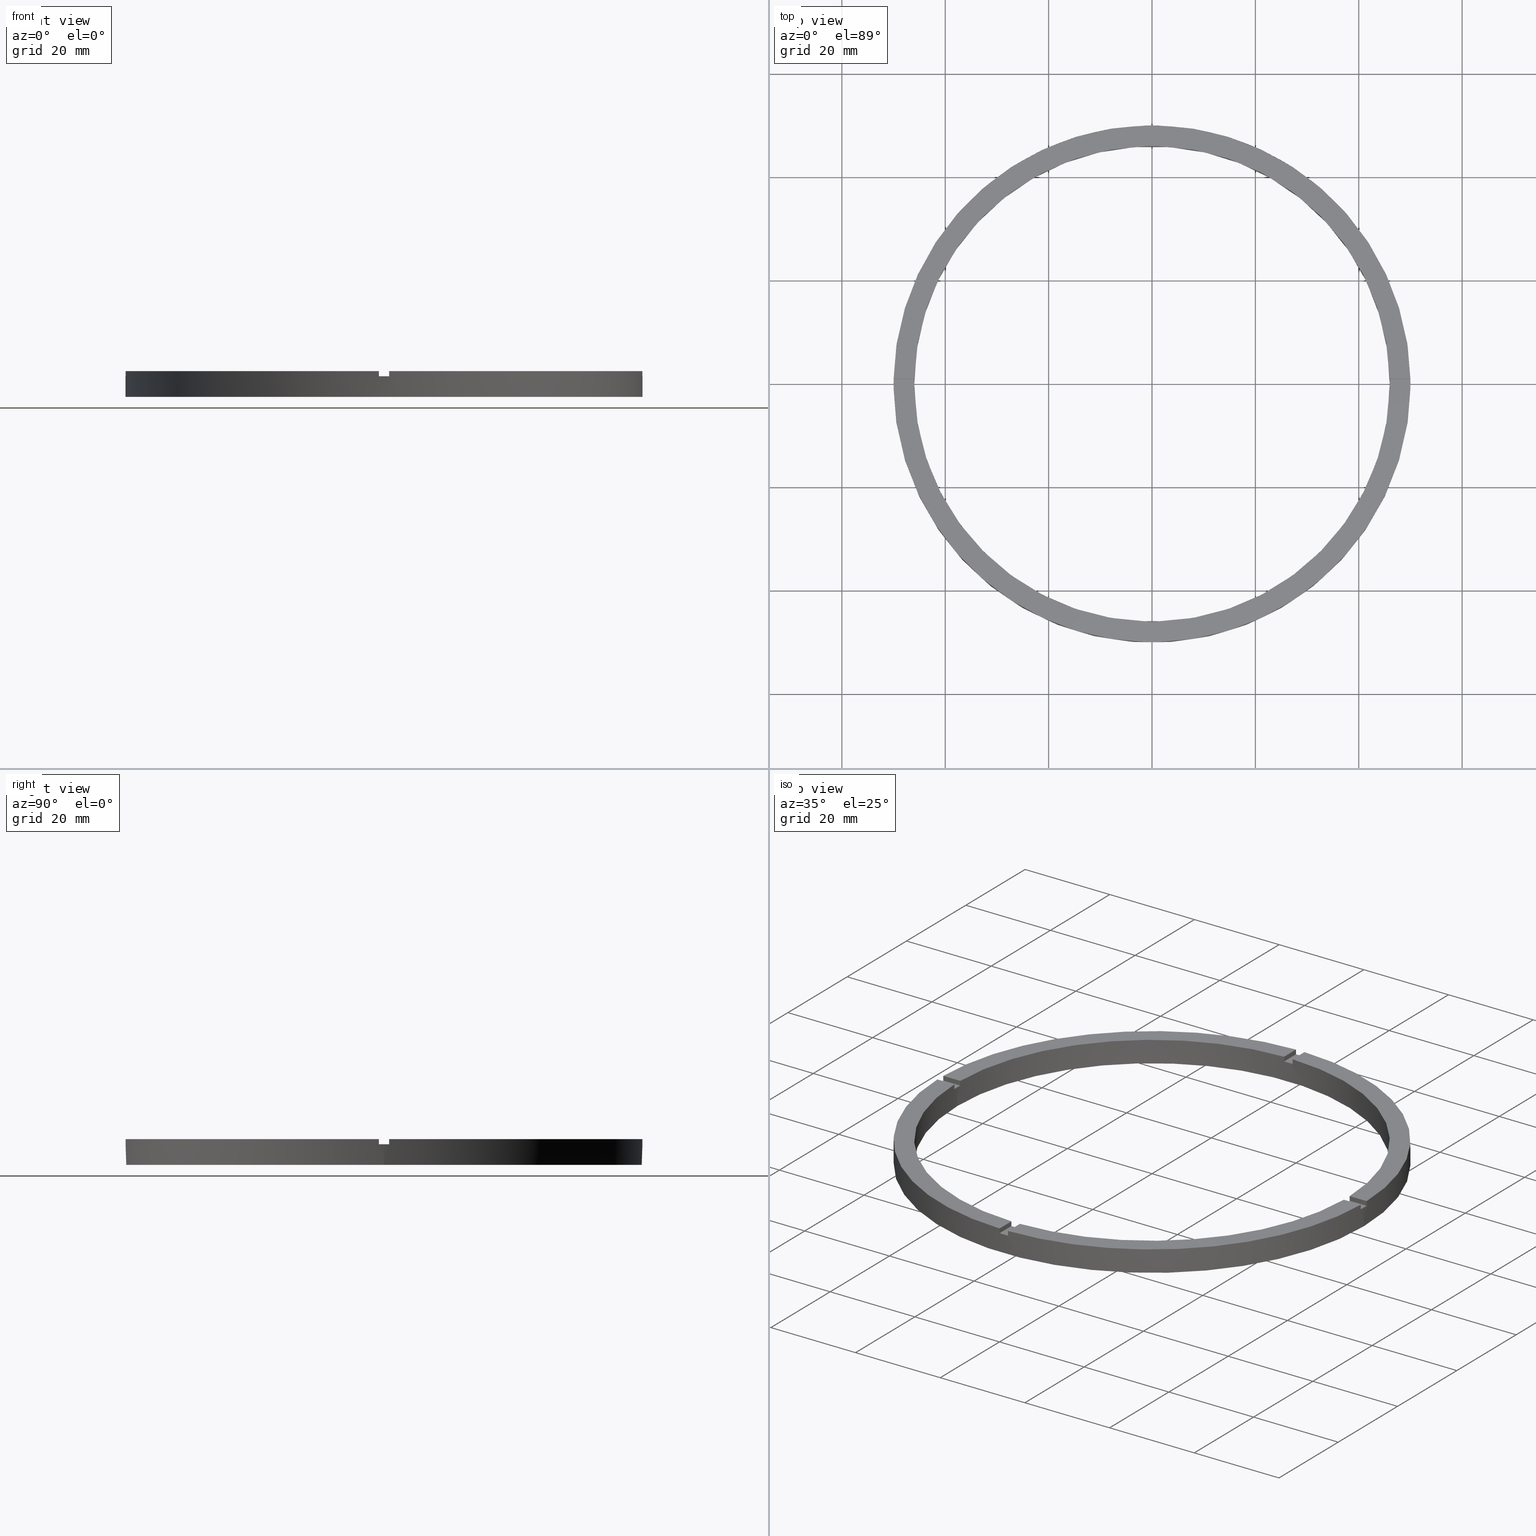
[diagram: canonical four-view strip — front | top / right | iso, engineering-drawing reading convention]
A machine part, canonical four-view strip (front | top / right | iso — engineering-drawing reading convention). The complete STEP part file that produces these views, byte-faithful:
ISO-10303-21;
HEADER;
FILE_DESCRIPTION (( 'STEP AP203' ),
    '1' );
FILE_NAME ('514204.step',
    '2024-12-26T02:47:46',
    ( 'MSI' ),
    ( '' ),
    'SwSTEP 2.0',
    'SolidWorks 2020',
    '' );
FILE_SCHEMA (( 'CONFIG_CONTROL_DESIGN' ));
ENDSEC;

DATA;
#1 = VECTOR ( 'NONE', #499, 1000.000000000000000 ) ;
#2 = DIRECTION ( 'NONE',  ( 1.000000000000000000, 0.000000000000000000, -0.000000000000000000 ) ) ;
#3 = SECURITY_CLASSIFICATION ( '', '', #211 ) ;
#4 = ADVANCED_FACE ( 'NONE', ( #563 ), #281, .T. ) ;
#5 = CARTESIAN_POINT ( 'NONE',  ( -1.000000000000026867, 40.00000000000000000, 4.000000000000000000 ) ) ;
#6 = PLANE ( 'NONE',  #493 ) ;
#7 = ADVANCED_FACE ( 'NONE', ( #570, #289 ), #682, .F. ) ;
#8 = DIRECTION ( 'NONE',  ( 1.000000000000000000, 0.000000000000000000, 0.000000000000000000 ) ) ;
#9 = DIRECTION ( 'NONE',  ( -0.000000000000000000, -0.000000000000000000, -1.000000000000000000 ) ) ;
#10 = CARTESIAN_POINT ( 'NONE',  ( -45.98912915026767223, 0.9999999999999694689, 4.000000000000000000 ) ) ;
#11 = AXIS2_PLACEMENT_3D ( 'NONE', #367, #446, #578 ) ;
#12 = DIRECTION ( 'NONE',  ( -0.000000000000000000, -0.000000000000000000, -1.000000000000000000 ) ) ;
#13 = EDGE_CURVE ( 'NONE', #704, #395, #547, .T. ) ;
#14 = AXIS2_PLACEMENT_3D ( 'NONE', #475, #694, #90 ) ;
#15 = DIRECTION ( 'NONE',  ( -1.301042606982605074E-16, 1.000000000000000000, -0.000000000000000000 ) ) ;
#16 = EDGE_CURVE ( 'NONE', #696, #717, #574, .T. ) ;
#17 = AXIS2_PLACEMENT_3D ( 'NONE', #692, #345, #756 ) ;
#18 = CARTESIAN_POINT ( 'NONE',  ( -1.000000000000026867, 45.98912915026767223, 5.000000000000000000 ) ) ;
#19 = CARTESIAN_POINT ( 'NONE',  ( 49.98999899979995831, 0.9999999999998447908, 5.000000000000000000 ) ) ;
#20 = CARTESIAN_POINT ( 'NONE',  ( 0.000000000000000000, 0.000000000000000000, 5.000000000000000000 ) ) ;
#21 = CARTESIAN_POINT ( 'NONE',  ( 0.000000000000000000, 0.000000000000000000, 5.000000000000000000 ) ) ;
#22 = AXIS2_PLACEMENT_3D ( 'NONE', #571, #333, #751 ) ;
#23 = EDGE_LOOP ( 'NONE', ( #442, #559, #385, #53, #469, #315, #26, #729, #207, #112, #552, #660 ) ) ;
#24 = DIRECTION ( 'NONE',  ( -0.000000000000000000, -0.000000000000000000, -1.000000000000000000 ) ) ;
#25 = ORIENTED_EDGE ( 'NONE', *, *, #628, .T. ) ;
#26 = ORIENTED_EDGE ( 'NONE', *, *, #639, .F. ) ;
#27 = ORIENTED_EDGE ( 'NONE', *, *, #72, .F. ) ;
#28 = CARTESIAN_POINT ( 'NONE',  ( -50.00000000000000000, 0.000000000000000000, 0.000000000000000000 ) ) ;
#29 = CARTESIAN_POINT ( 'NONE',  ( 0.000000000000000000, 0.000000000000000000, 0.000000000000000000 ) ) ;
#30 = EDGE_LOOP ( 'NONE', ( #379, #451, #428, #373, #312, #671, #417, #394, #142, #184, #45, #285 ) ) ;
#31 = LINE ( 'NONE', #227, #33 ) ;
#32 = LINE ( 'NONE', #218, #37 ) ;
#33 = VECTOR ( 'NONE', #371, 1000.000000000000000 ) ;
#34 = CARTESIAN_POINT ( 'NONE',  ( -46.00000000000000000, 0.000000000000000000, 0.000000000000000000 ) ) ;
#35 = DIRECTION ( 'NONE',  ( -1.301042606982605074E-16, 1.000000000000000000, 0.000000000000000000 ) ) ;
#36 = ORIENTED_EDGE ( 'NONE', *, *, #689, .F. ) ;
#37 = VECTOR ( 'NONE', #276, 1000.000000000000000 ) ;
#38 = ORIENTED_EDGE ( 'NONE', *, *, #80, .F. ) ;
#39 = EDGE_CURVE ( 'NONE', #370, #166, #581, .T. ) ;
#40 = CARTESIAN_POINT ( 'NONE',  ( 0.9999999999999731326, 45.98912915026767223, 4.000000000000000000 ) ) ;
#41 = EDGE_LOOP ( 'NONE', ( #381, #462, #100, #724 ) ) ;
#42 = VECTOR ( 'NONE', #219, 1000.000000000000000 ) ;
#43 = ORIENTED_EDGE ( 'NONE', *, *, #438, .F. ) ;
#44 = FACE_OUTER_BOUND ( 'NONE', #629, .T. ) ;
#45 = ORIENTED_EDGE ( 'NONE', *, *, #401, .T. ) ;
#46 = ORIENTED_EDGE ( 'NONE', *, *, #588, .T. ) ;
#47 = VERTEX_POINT ( 'NONE', #343 ) ;
#48 = EDGE_CURVE ( 'NONE', #133, #717, #554, .T. ) ;
#49 = CARTESIAN_POINT ( 'NONE',  ( 0.000000000000000000, 0.000000000000000000, 4.000000000000000000 ) ) ;
#50 = ORIENTED_EDGE ( 'NONE', *, *, #548, .F. ) ;
#51 = EDGE_LOOP ( 'NONE', ( #43, #452, #678, #384 ) ) ;
#52 = EDGE_CURVE ( 'NONE', #133, #107, #32, .T. ) ;
#53 = ORIENTED_EDGE ( 'NONE', *, *, #225, .F. ) ;
#54 = FACE_OUTER_BOUND ( 'NONE', #459, .T. ) ;
#55 = DIRECTION ( 'NONE',  ( -1.000000000000000000, -1.301042606982605074E-16, 0.000000000000000000 ) ) ;
#56 = VECTOR ( 'NONE', #128, 1000.000000000000000 ) ;
#57 = LINE ( 'NONE', #425, #329 ) ;
#58 = DIRECTION ( 'NONE',  ( 1.000000000000000000, 0.000000000000000000, 0.000000000000000000 ) ) ;
#59 = ADVANCED_FACE ( 'NONE', ( #44 ), #115, .T. ) ;
#60 = CIRCLE ( 'NONE', #654, 50.00000000000000000 ) ;
#61 = DIRECTION ( 'NONE',  ( 0.000000000000000000, 0.000000000000000000, 1.000000000000000000 ) ) ;
#62 = CC_DESIGN_PERSON_AND_ORGANIZATION_ASSIGNMENT ( #718, #123, ( #259 ) ) ;
#63 = DIRECTION ( 'NONE',  ( 0.000000000000000000, 0.000000000000000000, 1.000000000000000000 ) ) ;
#64 = AXIS2_PLACEMENT_3D ( 'NONE', #70, #210, #508 ) ;
#65 = DIRECTION ( 'NONE',  ( -0.000000000000000000, -0.000000000000000000, -1.000000000000000000 ) ) ;
#66 = CARTESIAN_POINT ( 'NONE',  ( 50.00000000000000000, 6.123233995736766085E-15, 5.000000000000000000 ) ) ;
#67 = DIRECTION ( 'NONE',  ( 0.000000000000000000, 0.000000000000000000, 1.000000000000000000 ) ) ;
#68 = CARTESIAN_POINT ( 'NONE',  ( 0.000000000000000000, 0.000000000000000000, 5.000000000000000000 ) ) ;
#69 = PRODUCT_RELATED_PRODUCT_CATEGORY ( 'detail', '', ( #109 ) ) ;
#70 = CARTESIAN_POINT ( 'NONE',  ( 0.000000000000000000, 0.000000000000000000, 5.000000000000000000 ) ) ;
#71 = EDGE_CURVE ( 'NONE', #399, #376, #321, .T. ) ;
#72 = EDGE_CURVE ( 'NONE', #727, #690, #302, .T. ) ;
#73 = DIRECTION ( 'NONE',  ( -0.000000000000000000, -0.000000000000000000, -1.000000000000000000 ) ) ;
#74 = DIRECTION ( 'NONE',  ( 1.000000000000000000, 0.000000000000000000, 0.000000000000000000 ) ) ;
#75 = DIRECTION ( 'NONE',  ( -0.000000000000000000, -0.000000000000000000, -1.000000000000000000 ) ) ;
#76 = CARTESIAN_POINT ( 'NONE',  ( -1.000000000000156763, -49.98999899979995121, 5.000000000000000000 ) ) ;
#77 = DIRECTION ( 'NONE',  ( -1.000000000000000000, -1.951563910473907735E-16, 0.000000000000000000 ) ) ;
#78 = EDGE_CURVE ( 'NONE', #704, #651, #550, .T. ) ;
#79 = AXIS2_PLACEMENT_3D ( 'NONE', #355, #606, #658 ) ;
#80 = EDGE_CURVE ( 'NONE', #667, #410, #292, .T. ) ;
#81 = CARTESIAN_POINT ( 'NONE',  ( -1.000000000000157208, -45.98912915026767223, 5.000000000000000000 ) ) ;
#82 = AXIS2_PLACEMENT_3D ( 'NONE', #613, #106, #363 ) ;
#83 = CARTESIAN_POINT ( 'NONE',  ( 0.000000000000000000, 0.000000000000000000, 4.000000000000000000 ) ) ;
#84 = CARTESIAN_POINT ( 'NONE',  ( 0.9999999999999731326, 49.98999899979995121, 4.000000000000000000 ) ) ;
#85 = CARTESIAN_POINT ( 'NONE',  ( 50.00000000000000000, 6.123233995736766085E-15, 0.000000000000000000 ) ) ;
#86 = CC_DESIGN_DATE_AND_TIME_ASSIGNMENT ( #477, #206, ( #233 ) ) ;
#87 = DIRECTION ( 'NONE',  ( 0.000000000000000000, -0.000000000000000000, 1.000000000000000000 ) ) ;
#88 = CARTESIAN_POINT ( 'NONE',  ( 45.98912915026767223, -1.000000000000155431, 4.000000000000000000 ) ) ;
#89 = CARTESIAN_POINT ( 'NONE',  ( 0.9999999999999731326, 49.98999899979995121, 5.000000000000000000 ) ) ;
#90 = DIRECTION ( 'NONE',  ( 1.000000000000000000, 0.000000000000000000, 0.000000000000000000 ) ) ;
#91 = CARTESIAN_POINT ( 'NONE',  ( 0.000000000000000000, 0.000000000000000000, 4.000000000000000000 ) ) ;
#92 = ADVANCED_FACE ( 'NONE', ( #288 ), #521, .F. ) ;
#93 = DIRECTION ( 'NONE',  ( 0.000000000000000000, 1.000000000000000000, 0.000000000000000000 ) ) ;
#95 = VERTEX_POINT ( 'NONE', #136 ) ;
#94 = AXIS2_PLACEMENT_3D ( 'NONE', #764, #294, #35 ) ;
#96 = PERSON_AND_ORGANIZATION_ROLE ( 'classification_officer' ) ;
#97 = ORIENTED_EDGE ( 'NONE', *, *, #588, .F. ) ;
#98 = EDGE_CURVE ( 'NONE', #314, #727, #31, .T. ) ;
#99 = ADVANCED_FACE ( 'NONE', ( #297 ), #683, .F. ) ;
#100 = ORIENTED_EDGE ( 'NONE', *, *, #532, .F. ) ;
#101 = CARTESIAN_POINT ( 'NONE',  ( -40.00000000000018474, 0.9999999999999705791, 4.000000000000000000 ) ) ;
#102 = VERTEX_POINT ( 'NONE', #34 ) ;
#103 = DIRECTION ( 'NONE',  ( 1.000000000000000000, 0.000000000000000000, 0.000000000000000000 ) ) ;
#104 = ORIENTED_EDGE ( 'NONE', *, *, #484, .T. ) ;
#105 =( NAMED_UNIT ( * ) SI_UNIT ( $, .STERADIAN. ) SOLID_ANGLE_UNIT ( ) );
#106 = DIRECTION ( 'NONE',  ( 0.000000000000000000, 0.000000000000000000, 1.000000000000000000 ) ) ;
#107 = VERTEX_POINT ( 'NONE', #461 ) ;
#108 = ORIENTED_EDGE ( 'NONE', *, *, #479, .T. ) ;
#109 = PRODUCT ( '514204', '514204', '', ( #566 ) ) ;
#110 = ORIENTED_EDGE ( 'NONE', *, *, #238, .F. ) ;
#111 = CARTESIAN_POINT ( 'NONE',  ( 0.000000000000000000, 0.000000000000000000, 0.000000000000000000 ) ) ;
#112 = ORIENTED_EDGE ( 'NONE', *, *, #762, .T. ) ;
#113 =( LENGTH_UNIT ( ) NAMED_UNIT ( * ) SI_UNIT ( .MILLI., .METRE. ) );
#114 = APPROVAL ( #320, 'δָ��' ) ;
#115 = PLANE ( 'NONE',  #82 ) ;
#116 = ORIENTED_EDGE ( 'NONE', *, *, #762, .F. ) ;
#117 = VERTEX_POINT ( 'NONE', #216 ) ;
#118 = AXIS2_PLACEMENT_3D ( 'NONE', #626, #700, #771 ) ;
#119 = EDGE_LOOP ( 'NONE', ( #659, #108, #46, #691, #298, #25 ) ) ;
#120 = CARTESIAN_POINT ( 'NONE',  ( -45.98912915026767223, 0.9999999999999694689, 5.000000000000000000 ) ) ;
#121 = ADVANCED_FACE ( 'NONE', ( #304 ), #305, .T. ) ;
#122 = ORIENTED_EDGE ( 'NONE', *, *, #765, .T. ) ;
#123 = PERSON_AND_ORGANIZATION_ROLE ( 'creator' ) ;
#124 = DIRECTION ( 'NONE',  ( -1.000000000000000000, -6.505213034913025371E-17, -0.000000000000000000 ) ) ;
#125 = EDGE_LOOP ( 'NONE', ( #400, #157, #649, #127, #154, #662, #457, #648, #407, #317, #318, #449 ) ) ;
#126 = VERTEX_POINT ( 'NONE', #84 ) ;
#127 = ORIENTED_EDGE ( 'NONE', *, *, #768, .F. ) ;
#128 = DIRECTION ( 'NONE',  ( 0.000000000000000000, 1.000000000000000000, 0.000000000000000000 ) ) ;
#129 = CARTESIAN_POINT ( 'NONE',  ( 46.00000000000000000, 5.633375276077824704E-15, 4.000000000000000000 ) ) ;
#130 = ORIENTED_EDGE ( 'NONE', *, *, #548, .T. ) ;
#131 = DIRECTION ( 'NONE',  ( -1.951563910473907735E-16, 1.000000000000000000, 0.000000000000000000 ) ) ;
#132 = VERTEX_POINT ( 'NONE', #693 ) ;
#133 = VERTEX_POINT ( 'NONE', #129 ) ;
#134 = VERTEX_POINT ( 'NONE', #76 ) ;
#135 = AXIS2_PLACEMENT_3D ( 'NONE', #336, #131, #77 ) ;
#136 = CARTESIAN_POINT ( 'NONE',  ( -45.98912915026767223, 0.9999999999999694689, 5.000000000000000000 ) ) ;
#137 = ORIENTED_EDGE ( 'NONE', *, *, #16, .T. ) ;
#138 = DIRECTION ( 'NONE',  ( 1.000000000000000000, 0.000000000000000000, 0.000000000000000000 ) ) ;
#139 = DIRECTION ( 'NONE',  ( 0.000000000000000000, 0.000000000000000000, 1.000000000000000000 ) ) ;
#140 = VERTEX_POINT ( 'NONE', #275 ) ;
#141 = ORIENTED_EDGE ( 'NONE', *, *, #591, .F. ) ;
#142 = ORIENTED_EDGE ( 'NONE', *, *, #299, .F. ) ;
#143 = CARTESIAN_POINT ( 'NONE',  ( 0.000000000000000000, 0.000000000000000000, 4.000000000000000000 ) ) ;
#144 = EDGE_CURVE ( 'NONE', #562, #638, #308, .T. ) ;
#145 = CARTESIAN_POINT ( 'NONE',  ( -49.98999899979995121, -1.000000000000031530, 5.000000000000000000 ) ) ;
#146 = ORIENTED_EDGE ( 'NONE', *, *, #765, .F. ) ;
#147 = AXIS2_PLACEMENT_3D ( 'NONE', #143, #226, #534 ) ;
#148 = CARTESIAN_POINT ( 'NONE',  ( -40.00000000000018474, 0.9999999999999705791, 5.000000000000000000 ) ) ;
#149 = ORIENTED_EDGE ( 'NONE', *, *, #98, .T. ) ;
#150 = DIRECTION ( 'NONE',  ( 0.000000000000000000, 0.000000000000000000, 1.000000000000000000 ) ) ;
#151 = VERTEX_POINT ( 'NONE', #28 ) ;
#152 = ORIENTED_EDGE ( 'NONE', *, *, #196, .F. ) ;
#153 = ORIENTED_EDGE ( 'NONE', *, *, #438, .T. ) ;
#154 = ORIENTED_EDGE ( 'NONE', *, *, #238, .T. ) ;
#155 = CARTESIAN_POINT ( 'NONE',  ( 0.000000000000000000, 0.000000000000000000, 4.000000000000000000 ) ) ;
#156 = VERTEX_POINT ( 'NONE', #145 ) ;
#157 = ORIENTED_EDGE ( 'NONE', *, *, #13, .F. ) ;
#158 = DIRECTION ( 'NONE',  ( -0.000000000000000000, -0.000000000000000000, -1.000000000000000000 ) ) ;
#159 = PERSON ( 'δָ��', 'δָ��', 'δָ��', ('δָ��'), ('δָ��'), ('δָ��') ) ;
#160 = ORIENTED_EDGE ( 'NONE', *, *, #196, .T. ) ;
#161 = ORIENTED_EDGE ( 'NONE', *, *, #295, .T. ) ;
#162 = DIRECTION ( 'NONE',  ( 0.000000000000000000, 0.000000000000000000, 1.000000000000000000 ) ) ;
#163 = ORIENTED_EDGE ( 'NONE', *, *, #80, .T. ) ;
#164 = CIRCLE ( 'NONE', #398, 46.00000000000000000 ) ;
#165 = AXIS2_PLACEMENT_3D ( 'NONE', #737, #61, #485 ) ;
#166 = VERTEX_POINT ( 'NONE', #81 ) ;
#167 = CIRCLE ( 'NONE', #79, 46.00000000000000000 ) ;
#168 = CARTESIAN_POINT ( 'NONE',  ( 0.000000000000000000, 0.000000000000000000, 5.000000000000000000 ) ) ;
#169 = ORIENTED_EDGE ( 'NONE', *, *, #611, .F. ) ;
#170 = APPROVAL_DATE_TIME ( #443, #324 ) ;
#171 = ORIENTED_EDGE ( 'NONE', *, *, #389, .T. ) ;
#172 = CARTESIAN_POINT ( 'NONE',  ( -1.000000000000157208, -45.98912915026767223, 5.000000000000000000 ) ) ;
#173 = ORIENTED_EDGE ( 'NONE', *, *, #688, .T. ) ;
#174 = ORGANIZATION ( 'δָ��', 'δָ��', '' ) ;
#175 = CARTESIAN_POINT ( 'NONE',  ( 0.000000000000000000, 0.000000000000000000, 5.000000000000000000 ) ) ;
#176 = ORIENTED_EDGE ( 'NONE', *, *, #430, .F. ) ;
#177 = ADVANCED_FACE ( 'NONE', ( #54 ), #592, .F. ) ;
#178 = CALENDAR_DATE ( 2024, 26, 12 ) ;
#179 = VERTEX_POINT ( 'NONE', #40 ) ;
#180 = APPROVAL_PERSON_ORGANIZATION ( #185, #114, #612 ) ;
#181 = DATE_TIME_ROLE ( 'classification_date' ) ;
#182 = CARTESIAN_POINT ( 'NONE',  ( -50.00000000000000000, 0.000000000000000000, 4.000000000000000000 ) ) ;
#183 = EDGE_LOOP ( 'NONE', ( #431, #635, #153, #637 ) ) ;
#184 = ORIENTED_EDGE ( 'NONE', *, *, #434, .T. ) ;
#185 = PERSON_AND_ORGANIZATION ( #159, #174 ) ;
#186 = CARTESIAN_POINT ( 'NONE',  ( 45.98912915026767934, 0.9999999999998445688, 5.000000000000000000 ) ) ;
#187 = ORIENTED_EDGE ( 'NONE', *, *, #338, .T. ) ;
#188 = CIRCLE ( 'NONE', #549, 50.00000000000000000 ) ;
#189 = DIRECTION ( 'NONE',  ( -1.000000000000000000, 0.000000000000000000, 0.000000000000000000 ) ) ;
#190 = ORIENTED_EDGE ( 'NONE', *, *, #72, .T. ) ;
#191 = ADVANCED_FACE ( 'NONE', ( #587 ), #267, .T. ) ;
#192 = PERSON_AND_ORGANIZATION ( #159, #174 ) ;
#193 = AXIS2_PLACEMENT_3D ( 'NONE', #5, #220, #282 ) ;
#194 = CARTESIAN_POINT ( 'NONE',  ( 0.000000000000000000, 0.000000000000000000, 0.000000000000000000 ) ) ;
#195 = CARTESIAN_POINT ( 'NONE',  ( -1.000000000000158096, -40.00000000000018474, 4.000000000000000000 ) ) ;
#196 = EDGE_CURVE ( 'NONE', #179, #126, #332, .T. ) ;
#197 = VERTEX_POINT ( 'NONE', #515 ) ;
#198 = COORDINATED_UNIVERSAL_TIME_OFFSET ( 8, 0, .AHEAD. ) ;
#199 = EDGE_CURVE ( 'NONE', #666, #151, #326, .T. ) ;
#200 = AXIS2_PLACEMENT_3D ( 'NONE', #222, #531, #623 ) ;
#201 = EDGE_LOOP ( 'NONE', ( #695, #161, #146, #420 ) ) ;
#202 = APPROVAL_DATE_TIME ( #470, #350 ) ;
#203 = DIRECTION ( 'NONE',  ( 1.000000000000000000, 0.000000000000000000, 0.000000000000000000 ) ) ;
#204 = ORIENTED_EDGE ( 'NONE', *, *, #732, .T. ) ;
#205 = CALENDAR_DATE ( 2024, 26, 12 ) ;
#206 = DATE_TIME_ROLE ( 'creation_date' ) ;
#207 = ORIENTED_EDGE ( 'NONE', *, *, #483, .F. ) ;
#208 = VECTOR ( 'NONE', #427, 1000.000000000000000 ) ;
#209 = COORDINATED_UNIVERSAL_TIME_OFFSET ( 8, 0, .AHEAD. ) ;
#210 = DIRECTION ( 'NONE',  ( 0.000000000000000000, 0.000000000000000000, 1.000000000000000000 ) ) ;
#211 = SECURITY_CLASSIFICATION_LEVEL ( 'unclassified' ) ;
#212 = PLANE ( 'NONE',  #541 ) ;
#213 = DATE_AND_TIME ( #730, #456 ) ;
#214 = AXIS2_PLACEMENT_3D ( 'NONE', #244, #55, #598 ) ;
#215 = PERSON_AND_ORGANIZATION ( #159, #174 ) ;
#216 = CARTESIAN_POINT ( 'NONE',  ( -46.00000000000000000, 0.000000000000000000, 4.000000000000000000 ) ) ;
#217 = DIRECTION ( 'NONE',  ( 1.000000000000000000, 0.000000000000000000, 0.000000000000000000 ) ) ;
#218 = CARTESIAN_POINT ( 'NONE',  ( 46.00000000000000000, 5.633375276077824704E-15, 5.000000000000000000 ) ) ;
#219 = DIRECTION ( 'NONE',  ( 0.000000000000000000, 0.000000000000000000, 1.000000000000000000 ) ) ;
#220 = DIRECTION ( 'NONE',  ( -1.000000000000000000, 0.000000000000000000, 0.000000000000000000 ) ) ;
#221 = DIRECTION ( 'NONE',  ( 0.000000000000000000, 0.000000000000000000, 1.000000000000000000 ) ) ;
#222 = CARTESIAN_POINT ( 'NONE',  ( 0.000000000000000000, 0.000000000000000000, 5.000000000000000000 ) ) ;
#223 = EDGE_CURVE ( 'NONE', #140, #391, #60, .T. ) ;
#224 = VECTOR ( 'NONE', #15, 1000.000000000000000 ) ;
#225 = EDGE_CURVE ( 'NONE', #391, #151, #593, .T. ) ;
#226 = DIRECTION ( 'NONE',  ( 0.000000000000000000, 0.000000000000000000, 1.000000000000000000 ) ) ;
#227 = CARTESIAN_POINT ( 'NONE',  ( 0.9999999999998419042, -40.00000000000018474, 5.000000000000000000 ) ) ;
#228 = CIRCLE ( 'NONE', #266, 46.00000000000000000 ) ;
#229 = CIRCLE ( 'NONE', #283, 50.00000000000000000 ) ;
#230 = VECTOR ( 'NONE', #24, 1000.000000000000000 ) ;
#231 = LINE ( 'NONE', #172, #232 ) ;
#232 = VECTOR ( 'NONE', #397, 1000.000000000000000 ) ;
#233 = PRODUCT_DEFINITION ( 'δ֪', '', #259, #713 ) ;
#234 = CIRCLE ( 'NONE', #290, 50.00000000000000000 ) ;
#235 =( GEOMETRIC_REPRESENTATION_CONTEXT ( 3 ) GLOBAL_UNCERTAINTY_ASSIGNED_CONTEXT ( ( #331 ) ) GLOBAL_UNIT_ASSIGNED_CONTEXT ( ( #113, #268, #105 ) ) REPRESENTATION_CONTEXT ( 'NONE', 'WORKASPACE' ) );
#236 = CIRCLE ( 'NONE', #383, 46.00000000000000000 ) ;
#237 = CARTESIAN_POINT ( 'NONE',  ( -45.98912915026767223, -1.000000000000030642, 4.000000000000000000 ) ) ;
#238 = EDGE_CURVE ( 'NONE', #314, #710, #57, .T. ) ;
#239 = LINE ( 'NONE', #120, #252 ) ;
#240 = CARTESIAN_POINT ( 'NONE',  ( -40.00000000000018474, -1.000000000000029532, 5.000000000000000000 ) ) ;
#241 = CIRCLE ( 'NONE', #14, 46.00000000000000000 ) ;
#242 = LINE ( 'NONE', #18, #769 ) ;
#243 = LINE ( 'NONE', #523, #230 ) ;
#244 = CARTESIAN_POINT ( 'NONE',  ( -1.000000000000158096, -40.00000000000018474, 4.000000000000000000 ) ) ;
#245 = LINE ( 'NONE', #579, #776 ) ;
#246 = DIRECTION ( 'NONE',  ( -0.000000000000000000, 0.000000000000000000, 1.000000000000000000 ) ) ;
#247 = VECTOR ( 'NONE', #124, 1000.000000000000000 ) ;
#248 = CIRCLE ( 'NONE', #722, 46.00000000000000000 ) ;
#249 = CIRCLE ( 'NONE', #347, 50.00000000000000000 ) ;
#250 = LINE ( 'NONE', #291, #513 ) ;
#251 = DIRECTION ( 'NONE',  ( 0.000000000000000000, 0.000000000000000000, 1.000000000000000000 ) ) ;
#252 = VECTOR ( 'NONE', #742, 1000.000000000000000 ) ;
#253 = FACE_OUTER_BOUND ( 'NONE', #663, .T. ) ;
#254 = VECTOR ( 'NONE', #517, 1000.000000000000000 ) ;
#255 = APPROVAL_STATUS ( 'not_yet_approved' ) ;
#256 = CIRCLE ( 'NONE', #738, 50.00000000000000000 ) ;
#257 = CARTESIAN_POINT ( 'NONE',  ( 49.98999899979995121, -1.000000000000155209, 4.000000000000000000 ) ) ;
#258 = VECTOR ( 'NONE', #533, 1000.000000000000000 ) ;
#259 = PRODUCT_DEFINITION_FORMATION_WITH_SPECIFIED_SOURCE ( '�κ�', '', #109, .NOT_KNOWN. ) ;
#260 = CIRCLE ( 'NONE', #274, 50.00000000000000000 ) ;
#261 = DIRECTION ( 'NONE',  ( 0.000000000000000000, 0.000000000000000000, 1.000000000000000000 ) ) ;
#262 = FACE_OUTER_BOUND ( 'NONE', #409, .T. ) ;
#263 = APPLICATION_CONTEXT ( 'configuration controlled 3d designs of mechanical parts and assemblies' ) ;
#264 = DIRECTION ( 'NONE',  ( 1.301042606982605074E-16, -1.000000000000000000, 0.000000000000000000 ) ) ;
#265 = LINE ( 'NONE', #101, #450 ) ;
#266 = AXIS2_PLACEMENT_3D ( 'NONE', #585, #486, #58 ) ;
#267 = PLANE ( 'NONE',  #603 ) ;
#268 =( NAMED_UNIT ( * ) PLANE_ANGLE_UNIT ( ) SI_UNIT ( $, .RADIAN. ) );
#269 = CARTESIAN_POINT ( 'NONE',  ( 0.000000000000000000, 0.000000000000000000, 5.000000000000000000 ) ) ;
#270 = EDGE_CURVE ( 'NONE', #47, #95, #584, .T. ) ;
#271 = ADVANCED_FACE ( 'NONE', ( #590 ), #675, .T. ) ;
#272 = CARTESIAN_POINT ( 'NONE',  ( 0.9999999999998419042, -40.00000000000018474, 4.000000000000000000 ) ) ;
#273 = EDGE_CURVE ( 'NONE', #696, #132, #323, .T. ) ;
#274 = AXIS2_PLACEMENT_3D ( 'NONE', #168, #380, #702 ) ;
#275 = CARTESIAN_POINT ( 'NONE',  ( -49.98999899979995121, 0.9999999999999685807, 4.000000000000000000 ) ) ;
#276 = DIRECTION ( 'NONE',  ( -0.000000000000000000, -0.000000000000000000, -1.000000000000000000 ) ) ;
#277 = EDGE_CURVE ( 'NONE', #151, #666, #229, .T. ) ;
#278 = CARTESIAN_POINT ( 'NONE',  ( 0.000000000000000000, 0.000000000000000000, 4.000000000000000000 ) ) ;
#279 = CARTESIAN_POINT ( 'NONE',  ( -40.00000000000018474, -1.000000000000029532, 4.000000000000000000 ) ) ;
#280 = CARTESIAN_POINT ( 'NONE',  ( 0.9999999999999731326, 40.00000000000000000, 5.000000000000000000 ) ) ;
#281 = PLANE ( 'NONE',  #147 ) ;
#282 = DIRECTION ( 'NONE',  ( 0.000000000000000000, 0.000000000000000000, 1.000000000000000000 ) ) ;
#283 = AXIS2_PLACEMENT_3D ( 'NONE', #744, #319, #668 ) ;
#284 = CARTESIAN_POINT ( 'NONE',  ( 0.9999999999998432365, -49.98999899979995831, 5.000000000000000000 ) ) ;
#285 = ORIENTED_EDGE ( 'NONE', *, *, #543, .F. ) ;
#286 = CC_DESIGN_APPROVAL ( #114, ( #259 ) ) ;
#287 = VECTOR ( 'NONE', #264, 1000.000000000000000 ) ;
#288 = FACE_OUTER_BOUND ( 'NONE', #706, .T. ) ;
#289 = FACE_BOUND ( 'NONE', #712, .T. ) ;
#290 = AXIS2_PLACEMENT_3D ( 'NONE', #482, #346, #645 ) ;
#291 = CARTESIAN_POINT ( 'NONE',  ( 39.99999999999999289, -1.000000000000155875, 5.000000000000000000 ) ) ;
#292 = LINE ( 'NONE', #279, #307 ) ;
#293 = ORIENTED_EDGE ( 'NONE', *, *, #484, .F. ) ;
#294 = DIRECTION ( 'NONE',  ( 1.000000000000000000, 1.301042606982605074E-16, 0.000000000000000000 ) ) ;
#295 = EDGE_CURVE ( 'NONE', #47, #424, #242, .T. ) ;
#296 = ORIENTED_EDGE ( 'NONE', *, *, #360, .T. ) ;
#297 = FACE_OUTER_BOUND ( 'NONE', #441, .T. ) ;
#298 = ORIENTED_EDGE ( 'NONE', *, *, #338, .F. ) ;
#299 = EDGE_CURVE ( 'NONE', #672, #95, #239, .T. ) ;
#300 = ADVANCED_FACE ( 'NONE', ( #488 ), #514, .F. ) ;
#301 = AXIS2_PLACEMENT_3D ( 'NONE', #278, #340, #586 ) ;
#302 = LINE ( 'NONE', #322, #565 ) ;
#303 = CARTESIAN_POINT ( 'NONE',  ( 39.99999999999999289, -1.000000000000155875, 4.000000000000000000 ) ) ;
#304 = FACE_OUTER_BOUND ( 'NONE', #125, .T. ) ;
#305 = CYLINDRICAL_SURFACE ( 'NONE', #200, 50.00000000000000000 ) ;
#306 = DIRECTION ( 'NONE',  ( 1.000000000000000000, 0.000000000000000000, 0.000000000000000000 ) ) ;
#307 = VECTOR ( 'NONE', #583, 1000.000000000000000 ) ;
#308 = LINE ( 'NONE', #535, #325 ) ;
#309 = EDGE_CURVE ( 'NONE', #710, #690, #516, .T. ) ;
#310 = ADVANCED_FACE ( 'NONE', ( #754 ), #411, .F. ) ;
#311 = DIRECTION ( 'NONE',  ( -1.000000000000000000, -1.951563910473907735E-16, 0.000000000000000000 ) ) ;
#312 = ORIENTED_EDGE ( 'NONE', *, *, #353, .F. ) ;
#313 = ORIENTED_EDGE ( 'NONE', *, *, #688, .F. ) ;
#314 = VERTEX_POINT ( 'NONE', #284 ) ;
#315 = ORIENTED_EDGE ( 'NONE', *, *, #447, .T. ) ;
#316 = CARTESIAN_POINT ( 'NONE',  ( -49.98999899979995121, -1.000000000000031530, 4.000000000000000000 ) ) ;
#317 = ORIENTED_EDGE ( 'NONE', *, *, #555, .F. ) ;
#318 = ORIENTED_EDGE ( 'NONE', *, *, #225, .T. ) ;
#319 = DIRECTION ( 'NONE',  ( 0.000000000000000000, 0.000000000000000000, 1.000000000000000000 ) ) ;
#320 = APPROVAL_STATUS ( 'not_yet_approved' ) ;
#321 = LINE ( 'NONE', #195, #287 ) ;
#322 = CARTESIAN_POINT ( 'NONE',  ( 0.9999999999998427924, -45.98912915026767934, 5.000000000000000000 ) ) ;
#323 = CIRCLE ( 'NONE', #64, 46.00000000000000000 ) ;
#324 = APPROVAL ( #496, 'δָ��' ) ;
#325 = VECTOR ( 'NONE', #150, 1000.000000000000000 ) ;
#326 = CIRCLE ( 'NONE', #474, 50.00000000000000000 ) ;
#327 = CARTESIAN_POINT ( 'NONE',  ( 0.000000000000000000, 0.000000000000000000, 5.000000000000000000 ) ) ;
#328 = APPROVAL_ROLE ( '' ) ;
#329 = VECTOR ( 'NONE', #75, 1000.000000000000000 ) ;
#330 = CARTESIAN_POINT ( 'NONE',  ( 50.00000000000000000, 6.123233995736766085E-15, 4.000000000000000000 ) ) ;
#331 = UNCERTAINTY_MEASURE_WITH_UNIT (LENGTH_MEASURE( 1.000000000000000082E-05 ), #113, 'distance_accuracy_value', 'NONE');
#332 = LINE ( 'NONE', #444, #56 ) ;
#333 = DIRECTION ( 'NONE',  ( -0.000000000000000000, 0.000000000000000000, 1.000000000000000000 ) ) ;
#334 = PLANE ( 'NONE',  #11 ) ;
#335 = CARTESIAN_POINT ( 'NONE',  ( 0.9999999999999731326, 40.00000000000000000, 4.000000000000000000 ) ) ;
#336 = CARTESIAN_POINT ( 'NONE',  ( -40.00000000000018474, 0.9999999999999705791, 4.000000000000000000 ) ) ;
#337 = AXIS2_PLACEMENT_3D ( 'NONE', #622, #374, #217 ) ;
#338 = EDGE_CURVE ( 'NONE', #562, #133, #778, .T. ) ;
#339 = AXIS2_PLACEMENT_3D ( 'NONE', #464, #246, #8 ) ;
#340 = DIRECTION ( 'NONE',  ( 0.000000000000000000, 0.000000000000000000, 1.000000000000000000 ) ) ;
#341 = DIRECTION ( 'NONE',  ( 1.000000000000000000, 1.951563910473907735E-16, 0.000000000000000000 ) ) ;
#342 = DIRECTION ( 'NONE',  ( -1.000000000000000000, 0.000000000000000000, 0.000000000000000000 ) ) ;
#343 = CARTESIAN_POINT ( 'NONE',  ( -1.000000000000026867, 45.98912915026767223, 5.000000000000000000 ) ) ;
#344 = AXIS2_PLACEMENT_3D ( 'NONE', #335, #757, #473 ) ;
#345 = DIRECTION ( 'NONE',  ( 0.000000000000000000, 0.000000000000000000, 1.000000000000000000 ) ) ;
#346 = DIRECTION ( 'NONE',  ( 0.000000000000000000, 0.000000000000000000, 1.000000000000000000 ) ) ;
#347 = AXIS2_PLACEMENT_3D ( 'NONE', #542, #480, #780 ) ;
#348 = DIRECTION ( 'NONE',  ( -0.000000000000000000, -0.000000000000000000, -1.000000000000000000 ) ) ;
#349 = DIRECTION ( 'NONE',  ( 0.000000000000000000, 0.000000000000000000, 1.000000000000000000 ) ) ;
#350 = APPROVAL ( #255, 'δָ��' ) ;
#351 = CARTESIAN_POINT ( 'NONE',  ( 0.000000000000000000, 0.000000000000000000, 5.000000000000000000 ) ) ;
#352 = DIRECTION ( 'NONE',  ( 1.000000000000000000, 0.000000000000000000, 0.000000000000000000 ) ) ;
#353 = EDGE_CURVE ( 'NONE', #179, #132, #775, .T. ) ;
#354 = PLANE ( 'NONE',  #135 ) ;
#355 = CARTESIAN_POINT ( 'NONE',  ( 0.000000000000000000, 0.000000000000000000, 4.000000000000000000 ) ) ;
#356 = EDGE_CURVE ( 'NONE', #386, #696, #758, .T. ) ;
#357 = DIRECTION ( 'NONE',  ( 1.000000000000000000, 0.000000000000000000, 0.000000000000000000 ) ) ;
#358 = DIRECTION ( 'NONE',  ( 1.000000000000000000, 0.000000000000000000, -0.000000000000000000 ) ) ;
#359 = DIRECTION ( 'NONE',  ( -0.000000000000000000, -1.000000000000000000, -0.000000000000000000 ) ) ;
#360 = EDGE_CURVE ( 'NONE', #386, #378, #249, .T. ) ;
#361 = CARTESIAN_POINT ( 'NONE',  ( -50.00000000000000000, 0.000000000000000000, 5.000000000000000000 ) ) ;
#362 = CARTESIAN_POINT ( 'NONE',  ( -1.000000000000026867, 45.98912915026767223, 4.000000000000000000 ) ) ;
#363 = DIRECTION ( 'NONE',  ( 1.000000000000000000, 0.000000000000000000, -0.000000000000000000 ) ) ;
#364 = ADVANCED_FACE ( 'NONE', ( #253 ), #6, .T. ) ;
#365 = CC_DESIGN_APPROVAL ( #324, ( #233 ) ) ;
#366 = DIRECTION ( 'NONE',  ( -0.000000000000000000, -0.000000000000000000, -1.000000000000000000 ) ) ;
#367 = CARTESIAN_POINT ( 'NONE',  ( 39.99999999999999289, -1.000000000000155875, 4.000000000000000000 ) ) ;
#368 = ORIENTED_EDGE ( 'NONE', *, *, #396, .T. ) ;
#369 = VERTEX_POINT ( 'NONE', #715 ) ;
#370 = VERTEX_POINT ( 'NONE', #605 ) ;
#371 = DIRECTION ( 'NONE',  ( -1.301042606982605074E-16, 1.000000000000000000, -0.000000000000000000 ) ) ;
#372 = DIRECTION ( 'NONE',  ( 1.000000000000000000, 0.000000000000000000, 0.000000000000000000 ) ) ;
#373 = ORIENTED_EDGE ( 'NONE', *, *, #273, .T. ) ;
#374 = DIRECTION ( 'NONE',  ( 0.000000000000000000, -0.000000000000000000, 1.000000000000000000 ) ) ;
#375 = CARTESIAN_POINT ( 'NONE',  ( 0.000000000000000000, 0.000000000000000000, 5.000000000000000000 ) ) ;
#376 = VERTEX_POINT ( 'NONE', #674 ) ;
#377 = ADVANCED_BREP_SHAPE_REPRESENTATION ( '514204', ( #723, #680 ), #235 ) ;
#378 = VERTEX_POINT ( 'NONE', #89 ) ;
#379 = ORIENTED_EDGE ( 'NONE', *, *, #52, .F. ) ;
#380 = DIRECTION ( 'NONE',  ( 0.000000000000000000, 0.000000000000000000, 1.000000000000000000 ) ) ;
#381 = ORIENTED_EDGE ( 'NONE', *, *, #642, .F. ) ;
#382 = CARTESIAN_POINT ( 'NONE',  ( 0.000000000000000000, 0.000000000000000000, 4.000000000000000000 ) ) ;
#383 = AXIS2_PLACEMENT_3D ( 'NONE', #29, #63, #352 ) ;
#384 = ORIENTED_EDGE ( 'NONE', *, *, #768, .T. ) ;
#385 = ORIENTED_EDGE ( 'NONE', *, *, #199, .T. ) ;
#386 = VERTEX_POINT ( 'NONE', #545 ) ;
#387 = CARTESIAN_POINT ( 'NONE',  ( 39.99999999999999289, 0.9999999999998441247, 4.000000000000000000 ) ) ;
#388 = ORIENTED_EDGE ( 'NONE', *, *, #732, .F. ) ;
#389 = EDGE_CURVE ( 'NONE', #370, #410, #749, .T. ) ;
#390 = EDGE_LOOP ( 'NONE', ( #406, #455, #141, #641 ) ) ;
#391 = VERTEX_POINT ( 'NONE', #182 ) ;
#392 = ORIENTED_EDGE ( 'NONE', *, *, #353, .T. ) ;
#393 = ORIENTED_EDGE ( 'NONE', *, *, #643, .T. ) ;
#394 = ORIENTED_EDGE ( 'NONE', *, *, #270, .T. ) ;
#395 = VERTEX_POINT ( 'NONE', #330 ) ;
#396 = EDGE_CURVE ( 'NONE', #399, #166, #231, .T. ) ;
#397 = DIRECTION ( 'NONE',  ( 0.000000000000000000, 0.000000000000000000, 1.000000000000000000 ) ) ;
#398 = AXIS2_PLACEMENT_3D ( 'NONE', #609, #422, #357 ) ;
#399 = VERTEX_POINT ( 'NONE', #601 ) ;
#400 = ORIENTED_EDGE ( 'NONE', *, *, #673, .F. ) ;
#401 = EDGE_CURVE ( 'NONE', #117, #102, #748, .T. ) ;
#402 = ORIENTED_EDGE ( 'NONE', *, *, #273, .F. ) ;
#403 = AXIS2_PLACEMENT_3D ( 'NONE', #763, #620, #341 ) ;
#404 = EDGE_LOOP ( 'NONE', ( #670, #368, #104, #176 ) ) ;
#405 = DIRECTION ( 'NONE',  ( 1.000000000000000000, 0.000000000000000000, 0.000000000000000000 ) ) ;
#406 = ORIENTED_EDGE ( 'NONE', *, *, #615, .T. ) ;
#407 = ORIENTED_EDGE ( 'NONE', *, *, #611, .T. ) ;
#408 = DIRECTION ( 'NONE',  ( 1.000000000000000000, 0.000000000000000000, -0.000000000000000000 ) ) ;
#409 = EDGE_LOOP ( 'NONE', ( #149, #190, #708, #110 ) ) ;
#410 = VERTEX_POINT ( 'NONE', #237 ) ;
#411 = PLANE ( 'NONE',  #214 ) ;
#412 = DIRECTION ( 'NONE',  ( 1.000000000000000000, 6.505213034913025371E-17, 0.000000000000000000 ) ) ;
#413 = AXIS2_PLACEMENT_3D ( 'NONE', #327, #435, #610 ) ;
#414 = DIRECTION ( 'NONE',  ( 0.000000000000000000, 0.000000000000000000, 1.000000000000000000 ) ) ;
#415 = ADVANCED_FACE ( 'NONE', ( #494 ), #655, .T. ) ;
#416 = CARTESIAN_POINT ( 'NONE',  ( 0.9999999999998427924, -45.98912915026767934, 4.000000000000000000 ) ) ;
#417 = ORIENTED_EDGE ( 'NONE', *, *, #295, .F. ) ;
#418 = DIRECTION ( 'NONE',  ( 0.000000000000000000, 0.000000000000000000, 1.000000000000000000 ) ) ;
#419 = CLOSED_SHELL ( 'NONE', ( #602, #421, #191, #59, #544, #364, #7, #121, #300, #92, #445, #415, #652, #310, #271, #177, #502, #4, #569, #99, #432 ) ) ;
#420 = ORIENTED_EDGE ( 'NONE', *, *, #481, .F. ) ;
#421 = ADVANCED_FACE ( 'NONE', ( #490 ), #746, .T. ) ;
#422 = DIRECTION ( 'NONE',  ( 0.000000000000000000, -0.000000000000000000, 1.000000000000000000 ) ) ;
#423 = EDGE_LOOP ( 'NONE', ( #557, #122, #36, #160 ) ) ;
#424 = VERTEX_POINT ( 'NONE', #362 ) ;
#425 = CARTESIAN_POINT ( 'NONE',  ( 0.9999999999998432365, -49.98999899979995831, 5.000000000000000000 ) ) ;
#426 = AXIS2_PLACEMENT_3D ( 'NONE', #20, #65, #633 ) ;
#427 = DIRECTION ( 'NONE',  ( 0.000000000000000000, 0.000000000000000000, 1.000000000000000000 ) ) ;
#428 = ORIENTED_EDGE ( 'NONE', *, *, #16, .F. ) ;
#429 = DIRECTION ( 'NONE',  ( -0.000000000000000000, -0.000000000000000000, -1.000000000000000000 ) ) ;
#430 = EDGE_CURVE ( 'NONE', #376, #134, #772, .T. ) ;
#431 = ORIENTED_EDGE ( 'NONE', *, *, #628, .F. ) ;
#432 = ADVANCED_FACE ( 'NONE', ( #770 ), #212, .T. ) ;
#433 = ORIENTED_EDGE ( 'NONE', *, *, #555, .T. ) ;
#434 = EDGE_CURVE ( 'NONE', #672, #117, #248, .T. ) ;
#435 = DIRECTION ( 'NONE',  ( 0.000000000000000000, 0.000000000000000000, 1.000000000000000000 ) ) ;
#436 = DIRECTION ( 'NONE',  ( 0.000000000000000000, 0.000000000000000000, 1.000000000000000000 ) ) ;
#437 = ORIENTED_EDGE ( 'NONE', *, *, #396, .F. ) ;
#438 = EDGE_CURVE ( 'NONE', #638, #651, #250, .T. ) ;
#439 = CARTESIAN_POINT ( 'NONE',  ( -1.000000000000156763, -49.98999899979995121, 5.000000000000000000 ) ) ;
#440 = ORIENTED_EDGE ( 'NONE', *, *, #614, .T. ) ;
#441 = EDGE_LOOP ( 'NONE', ( #152, #392, #130, #116 ) ) ;
#442 = ORIENTED_EDGE ( 'NONE', *, *, #479, .F. ) ;
#443 = DATE_AND_TIME ( #178, #707 ) ;
#444 = CARTESIAN_POINT ( 'NONE',  ( 0.9999999999999731326, 40.00000000000000000, 4.000000000000000000 ) ) ;
#445 = ADVANCED_FACE ( 'NONE', ( #750 ), #354, .F. ) ;
#446 = DIRECTION ( 'NONE',  ( 6.505213034913025371E-17, -1.000000000000000000, 0.000000000000000000 ) ) ;
#447 = EDGE_CURVE ( 'NONE', #140, #686, #245, .T. ) ;
#448 = LINE ( 'NONE', #19, #472 ) ;
#449 = ORIENTED_EDGE ( 'NONE', *, *, #277, .T. ) ;
#450 = VECTOR ( 'NONE', #546, 1000.000000000000000 ) ;
#451 = ORIENTED_EDGE ( 'NONE', *, *, #48, .T. ) ;
#452 = ORIENTED_EDGE ( 'NONE', *, *, #530, .F. ) ;
#453 = APPROVAL_PERSON_ORGANIZATION ( #476, #324, #560 ) ;
#454 = CARTESIAN_POINT ( 'NONE',  ( -1.000000000000158096, -40.00000000000018474, 5.000000000000000000 ) ) ;
#455 = ORIENTED_EDGE ( 'NONE', *, *, #309, .T. ) ;
#456 = LOCAL_TIME ( 10, 47, 46.00000000000000000, #714 ) ;
#457 = ORIENTED_EDGE ( 'NONE', *, *, #430, .T. ) ;
#458 = COORDINATED_UNIVERSAL_TIME_OFFSET ( 8, 0, .AHEAD. ) ;
#459 = EDGE_LOOP ( 'NONE', ( #634, #137, #97, #657 ) ) ;
#460 = APPROVAL_DATE_TIME ( #213, #114 ) ;
#461 = CARTESIAN_POINT ( 'NONE',  ( 46.00000000000000000, 5.633375276077824704E-15, 0.000000000000000000 ) ) ;
#462 = ORIENTED_EDGE ( 'NONE', *, *, #639, .T. ) ;
#463 = LOCAL_TIME ( 10, 47, 46.00000000000000000, #458 ) ;
#464 = CARTESIAN_POINT ( 'NONE',  ( 0.000000000000000000, 0.000000000000000000, 4.000000000000000000 ) ) ;
#465 = DIRECTION ( 'NONE',  ( 1.000000000000000000, 0.000000000000000000, 0.000000000000000000 ) ) ;
#466 = ORIENTED_EDGE ( 'NONE', *, *, #596, .F. ) ;
#467 = PERSON_AND_ORGANIZATION ( #159, #174 ) ;
#468 = CC_DESIGN_PERSON_AND_ORGANIZATION_ASSIGNMENT ( #192, #96, ( #3 ) ) ;
#469 = ORIENTED_EDGE ( 'NONE', *, *, #223, .F. ) ;
#470 = DATE_AND_TIME ( #205, #725 ) ;
#471 = ORIENTED_EDGE ( 'NONE', *, *, #144, .F. ) ;
#472 = VECTOR ( 'NONE', #12, 1000.000000000000000 ) ;
#473 = DIRECTION ( 'NONE',  ( 0.000000000000000000, 0.000000000000000000, -1.000000000000000000 ) ) ;
#474 = AXIS2_PLACEMENT_3D ( 'NONE', #111, #501, #203 ) ;
#475 = CARTESIAN_POINT ( 'NONE',  ( 0.000000000000000000, 0.000000000000000000, 0.000000000000000000 ) ) ;
#476 = PERSON_AND_ORGANIZATION ( #159, #174 ) ;
#477 = DATE_AND_TIME ( #709, #705 ) ;
#478 = CALENDAR_DATE ( 2024, 26, 12 ) ;
#479 = EDGE_CURVE ( 'NONE', #395, #731, #503, .T. ) ;
#480 = DIRECTION ( 'NONE',  ( 0.000000000000000000, 0.000000000000000000, 1.000000000000000000 ) ) ;
#481 = EDGE_CURVE ( 'NONE', #197, #369, #243, .T. ) ;
#482 = CARTESIAN_POINT ( 'NONE',  ( 0.000000000000000000, 0.000000000000000000, 4.000000000000000000 ) ) ;
#483 = EDGE_CURVE ( 'NONE', #126, #369, #518, .T. ) ;
#484 = EDGE_CURVE ( 'NONE', #166, #134, #777, .T. ) ;
#485 = DIRECTION ( 'NONE',  ( 1.000000000000000000, 0.000000000000000000, -0.000000000000000000 ) ) ;
#486 = DIRECTION ( 'NONE',  ( 0.000000000000000000, 0.000000000000000000, 1.000000000000000000 ) ) ;
#487 = VECTOR ( 'NONE', #414, 1000.000000000000000 ) ;
#488 = FACE_OUTER_BOUND ( 'NONE', #30, .T. ) ;
#489 = CARTESIAN_POINT ( 'NONE',  ( -46.00000000000000000, 0.000000000000000000, 5.000000000000000000 ) ) ;
#490 = FACE_OUTER_BOUND ( 'NONE', #23, .T. ) ;
#491 = LINE ( 'NONE', #148, #755 ) ;
#492 = CARTESIAN_POINT ( 'NONE',  ( 0.9999999999998427924, -45.98912915026767934, 5.000000000000000000 ) ) ;
#493 = AXIS2_PLACEMENT_3D ( 'NONE', #269, #162, #2 ) ;
#494 = FACE_OUTER_BOUND ( 'NONE', #679, .T. ) ;
#495 = VECTOR ( 'NONE', #93, 1000.000000000000000 ) ;
#496 = APPROVAL_STATUS ( 'not_yet_approved' ) ;
#497 = LINE ( 'NONE', #387, #500 ) ;
#498 = LINE ( 'NONE', #280, #495 ) ;
#499 = DIRECTION ( 'NONE',  ( -0.000000000000000000, -0.000000000000000000, -1.000000000000000000 ) ) ;
#500 = VECTOR ( 'NONE', #536, 1000.000000000000000 ) ;
#501 = DIRECTION ( 'NONE',  ( 0.000000000000000000, 0.000000000000000000, 1.000000000000000000 ) ) ;
#502 = ADVANCED_FACE ( 'NONE', ( #519 ), #334, .F. ) ;
#503 = CIRCLE ( 'NONE', #632, 50.00000000000000000 ) ;
#504 = APPLICATION_PROTOCOL_DEFINITION ( 'international standard', 'config_control_design', 1994, #745 ) ;
#505 = CARTESIAN_POINT ( 'NONE',  ( 49.98999899979995121, -1.000000000000155209, 5.000000000000000000 ) ) ;
#506 = FACE_OUTER_BOUND ( 'NONE', #703, .T. ) ;
#507 = VECTOR ( 'NONE', #9, 1000.000000000000000 ) ;
#508 = DIRECTION ( 'NONE',  ( 1.000000000000000000, 0.000000000000000000, 0.000000000000000000 ) ) ;
#509 = LINE ( 'NONE', #604, #520 ) ;
#510 = APPLICATION_PROTOCOL_DEFINITION ( 'international standard', 'config_control_design', 1994, #263 ) ;
#511 = DIRECTION ( 'NONE',  ( 0.000000000000000000, 0.000000000000000000, 1.000000000000000000 ) ) ;
#512 = VECTOR ( 'NONE', #511, 1000.000000000000000 ) ;
#513 = VECTOR ( 'NONE', #726, 1000.000000000000000 ) ;
#514 = CYLINDRICAL_SURFACE ( 'NONE', #538, 46.00000000000000000 ) ;
#515 = CARTESIAN_POINT ( 'NONE',  ( -1.000000000000026867, 49.98999899979995121, 5.000000000000000000 ) ) ;
#516 = LINE ( 'NONE', #272, #224 ) ;
#517 = DIRECTION ( 'NONE',  ( 1.301042606982605074E-16, -1.000000000000000000, 0.000000000000000000 ) ) ;
#518 = CIRCLE ( 'NONE', #337, 50.00000000000000000 ) ;
#519 = FACE_OUTER_BOUND ( 'NONE', #183, .T. ) ;
#520 = VECTOR ( 'NONE', #627, 1000.000000000000000 ) ;
#521 = PLANE ( 'NONE',  #403 ) ;
#522 = CARTESIAN_POINT ( 'NONE',  ( -1.000000000000026867, 40.00000000000000000, 5.000000000000000000 ) ) ;
#523 = CARTESIAN_POINT ( 'NONE',  ( -1.000000000000026867, 49.98999899979995121, 5.000000000000000000 ) ) ;
#524 = CARTESIAN_POINT ( 'NONE',  ( 45.98912915026767934, 0.9999999999998445688, 5.000000000000000000 ) ) ;
#525 = CIRCLE ( 'NONE', #339, 50.00000000000000000 ) ;
#526 = CC_DESIGN_PERSON_AND_ORGANIZATION_ASSIGNMENT ( #698, #618, ( #109 ) ) ;
#527 = LINE ( 'NONE', #240, #783 ) ;
#528 = LINE ( 'NONE', #66, #1 ) ;
#529 = VECTOR ( 'NONE', #412, 1000.000000000000000 ) ;
#530 = EDGE_CURVE ( 'NONE', #727, #638, #228, .T. ) ;
#531 = DIRECTION ( 'NONE',  ( -0.000000000000000000, -0.000000000000000000, -1.000000000000000000 ) ) ;
#532 = EDGE_CURVE ( 'NONE', #95, #686, #491, .T. ) ;
#533 = DIRECTION ( 'NONE',  ( -0.000000000000000000, -1.000000000000000000, -0.000000000000000000 ) ) ;
#534 = DIRECTION ( 'NONE',  ( 1.000000000000000000, 0.000000000000000000, -0.000000000000000000 ) ) ;
#535 = CARTESIAN_POINT ( 'NONE',  ( 45.98912915026767223, -1.000000000000155431, 5.000000000000000000 ) ) ;
#536 = DIRECTION ( 'NONE',  ( -1.000000000000000000, -6.505213034913025371E-17, -0.000000000000000000 ) ) ;
#537 = CC_DESIGN_PERSON_AND_ORGANIZATION_ASSIGNMENT ( #467, #743, ( #259 ) ) ;
#538 = AXIS2_PLACEMENT_3D ( 'NONE', #21, #366, #189 ) ;
#539 = DIRECTION ( 'NONE',  ( 1.000000000000000000, 0.000000000000000000, -0.000000000000000000 ) ) ;
#540 = PLANE ( 'NONE',  #193 ) ;
#541 = AXIS2_PLACEMENT_3D ( 'NONE', #49, #87, #539 ) ;
#542 = CARTESIAN_POINT ( 'NONE',  ( 0.000000000000000000, 0.000000000000000000, 5.000000000000000000 ) ) ;
#543 = EDGE_CURVE ( 'NONE', #107, #102, #236, .T. ) ;
#544 = ADVANCED_FACE ( 'NONE', ( #752 ), #599, .T. ) ;
#545 = CARTESIAN_POINT ( 'NONE',  ( 49.98999899979995831, 0.9999999999998447908, 5.000000000000000000 ) ) ;
#546 = DIRECTION ( 'NONE',  ( -1.000000000000000000, -1.951563910473907735E-16, 0.000000000000000000 ) ) ;
#547 = CIRCLE ( 'NONE', #301, 50.00000000000000000 ) ;
#548 = EDGE_CURVE ( 'NONE', #132, #378, #498, .T. ) ;
#549 = AXIS2_PLACEMENT_3D ( 'NONE', #68, #418, #74 ) ;
#550 = LINE ( 'NONE', #505, #42 ) ;
#551 = CARTESIAN_POINT ( 'NONE',  ( 0.9999999999999731326, 49.98999899979995121, 5.000000000000000000 ) ) ;
#552 = ORIENTED_EDGE ( 'NONE', *, *, #360, .F. ) ;
#553 = CARTESIAN_POINT ( 'NONE',  ( -49.98999899979995121, 0.9999999999999685807, 5.000000000000000000 ) ) ;
#554 = CIRCLE ( 'NONE', #616, 46.00000000000000000 ) ;
#555 = EDGE_CURVE ( 'NONE', #391, #667, #234, .T. ) ;
#556 = AXIS2_PLACEMENT_3D ( 'NONE', #375, #139, #759 ) ;
#557 = ORIENTED_EDGE ( 'NONE', *, *, #483, .T. ) ;
#558 = DIRECTION ( 'NONE',  ( -0.000000000000000000, -0.000000000000000000, -1.000000000000000000 ) ) ;
#559 = ORIENTED_EDGE ( 'NONE', *, *, #673, .T. ) ;
#560 = APPROVAL_ROLE ( '' ) ;
#561 = ORIENTED_EDGE ( 'NONE', *, *, #530, .T. ) ;
#562 = VERTEX_POINT ( 'NONE', #88 ) ;
#563 = FACE_OUTER_BOUND ( 'NONE', #119, .T. ) ;
#564 = CARTESIAN_POINT ( 'NONE',  ( 0.000000000000000000, 0.000000000000000000, 5.000000000000000000 ) ) ;
#565 = VECTOR ( 'NONE', #429, 1000.000000000000000 ) ;
#566 = MECHANICAL_CONTEXT ( 'NONE', #263, 'mechanical' ) ;
#567 = DIRECTION ( 'NONE',  ( 0.000000000000000000, 0.000000000000000000, 1.000000000000000000 ) ) ;
#568 = EDGE_LOOP ( 'NONE', ( #313, #631, #580, #582 ) ) ;
#569 = ADVANCED_FACE ( 'NONE', ( #761 ), #540, .F. ) ;
#570 = FACE_OUTER_BOUND ( 'NONE', #687, .T. ) ;
#571 = CARTESIAN_POINT ( 'NONE',  ( 0.000000000000000000, 0.000000000000000000, 4.000000000000000000 ) ) ;
#572 = ORIENTED_EDGE ( 'NONE', *, *, #543, .T. ) ;
#573 = DIRECTION ( 'NONE',  ( 0.000000000000000000, 0.000000000000000000, 1.000000000000000000 ) ) ;
#574 = LINE ( 'NONE', #524, #575 ) ;
#575 = VECTOR ( 'NONE', #685, 1000.000000000000000 ) ;
#576 = ORIENTED_EDGE ( 'NONE', *, *, #223, .T. ) ;
#577 = ORIENTED_EDGE ( 'NONE', *, *, #199, .F. ) ;
#578 = DIRECTION ( 'NONE',  ( 1.000000000000000000, 6.505213034913025371E-17, 0.000000000000000000 ) ) ;
#579 = CARTESIAN_POINT ( 'NONE',  ( -49.98999899979995121, 0.9999999999999685807, 5.000000000000000000 ) ) ;
#580 = ORIENTED_EDGE ( 'NONE', *, *, #532, .T. ) ;
#581 = CIRCLE ( 'NONE', #556, 46.00000000000000000 ) ;
#582 = ORIENTED_EDGE ( 'NONE', *, *, #447, .F. ) ;
#583 = DIRECTION ( 'NONE',  ( 1.000000000000000000, 1.951563910473907735E-16, -0.000000000000000000 ) ) ;
#584 = CIRCLE ( 'NONE', #413, 46.00000000000000000 ) ;
#585 = CARTESIAN_POINT ( 'NONE',  ( 0.000000000000000000, 0.000000000000000000, 5.000000000000000000 ) ) ;
#586 = DIRECTION ( 'NONE',  ( 1.000000000000000000, 0.000000000000000000, 0.000000000000000000 ) ) ;
#587 = FACE_OUTER_BOUND ( 'NONE', #41, .T. ) ;
#588 = EDGE_CURVE ( 'NONE', #731, #717, #497, .T. ) ;
#589 = VECTOR ( 'NONE', #558, 1000.000000000000000 ) ;
#590 = FACE_OUTER_BOUND ( 'NONE', #390, .T. ) ;
#591 = EDGE_CURVE ( 'NONE', #399, #690, #760, .T. ) ;
#592 = PLANE ( 'NONE',  #118 ) ;
#593 = LINE ( 'NONE', #361, #589 ) ;
#594 = CARTESIAN_POINT ( 'NONE',  ( 0.000000000000000000, 0.000000000000000000, 5.000000000000000000 ) ) ;
#595 = AXIS2_PLACEMENT_3D ( 'NONE', #83, #735, #138 ) ;
#596 = EDGE_CURVE ( 'NONE', #102, #107, #241, .T. ) ;
#597 = CARTESIAN_POINT ( 'NONE',  ( 39.99999999999999289, 0.9999999999998441247, 5.000000000000000000 ) ) ;
#598 = DIRECTION ( 'NONE',  ( 1.301042606982605074E-16, -1.000000000000000000, 0.000000000000000000 ) ) ;
#599 = PLANE ( 'NONE',  #608 ) ;
#600 = CC_DESIGN_SECURITY_CLASSIFICATION ( #3, ( #259 ) ) ;
#601 = CARTESIAN_POINT ( 'NONE',  ( -1.000000000000157208, -45.98912915026767223, 4.000000000000000000 ) ) ;
#602 = ADVANCED_FACE ( 'NONE', ( #506 ), #766, .F. ) ;
#603 = AXIS2_PLACEMENT_3D ( 'NONE', #564, #67, #358 ) ;
#604 = CARTESIAN_POINT ( 'NONE',  ( -49.98999899979995121, -1.000000000000031530, 5.000000000000000000 ) ) ;
#605 = CARTESIAN_POINT ( 'NONE',  ( -45.98912915026767223, -1.000000000000030642, 5.000000000000000000 ) ) ;
#606 = DIRECTION ( 'NONE',  ( 0.000000000000000000, 0.000000000000000000, 1.000000000000000000 ) ) ;
#607 = CC_DESIGN_PERSON_AND_ORGANIZATION_ASSIGNMENT ( #736, #661, ( #233 ) ) ;
#608 = AXIS2_PLACEMENT_3D ( 'NONE', #351, #251, #408 ) ;
#609 = CARTESIAN_POINT ( 'NONE',  ( 0.000000000000000000, 0.000000000000000000, 4.000000000000000000 ) ) ;
#610 = DIRECTION ( 'NONE',  ( 1.000000000000000000, 0.000000000000000000, 0.000000000000000000 ) ) ;
#611 = EDGE_CURVE ( 'NONE', #156, #667, #509, .T. ) ;
#612 = APPROVAL_ROLE ( '' ) ;
#613 = CARTESIAN_POINT ( 'NONE',  ( 0.000000000000000000, 0.000000000000000000, 5.000000000000000000 ) ) ;
#614 = EDGE_CURVE ( 'NONE', #156, #134, #260, .T. ) ;
#615 = EDGE_CURVE ( 'NONE', #376, #710, #525, .T. ) ;
#616 = AXIS2_PLACEMENT_3D ( 'NONE', #382, #221, #465 ) ;
#617 = CARTESIAN_POINT ( 'NONE',  ( 0.000000000000000000, 0.000000000000000000, 4.000000000000000000 ) ) ;
#618 = PERSON_AND_ORGANIZATION_ROLE ( 'design_owner' ) ;
#619 = DIRECTION ( 'NONE',  ( 1.000000000000000000, 0.000000000000000000, 0.000000000000000000 ) ) ;
#620 = DIRECTION ( 'NONE',  ( 1.951563910473907735E-16, -1.000000000000000000, 0.000000000000000000 ) ) ;
#621 = DIRECTION ( 'NONE',  ( 1.000000000000000000, 1.951563910473907735E-16, -0.000000000000000000 ) ) ;
#622 = CARTESIAN_POINT ( 'NONE',  ( 0.000000000000000000, 0.000000000000000000, 4.000000000000000000 ) ) ;
#623 = DIRECTION ( 'NONE',  ( -1.000000000000000000, 0.000000000000000000, 0.000000000000000000 ) ) ;
#624 = PLANE ( 'NONE',  #94 ) ;
#625 = AXIS2_PLACEMENT_3D ( 'NONE', #91, #349, #405 ) ;
#626 = CARTESIAN_POINT ( 'NONE',  ( 39.99999999999999289, 0.9999999999998441247, 4.000000000000000000 ) ) ;
#627 = DIRECTION ( 'NONE',  ( -0.000000000000000000, -0.000000000000000000, -1.000000000000000000 ) ) ;
#628 = EDGE_CURVE ( 'NONE', #562, #704, #779, .T. ) ;
#629 = EDGE_LOOP ( 'NONE', ( #50, #402, #646, #296 ) ) ;
#630 = ORIENTED_EDGE ( 'NONE', *, *, #52, .T. ) ;
#631 = ORIENTED_EDGE ( 'NONE', *, *, #299, .T. ) ;
#632 = AXIS2_PLACEMENT_3D ( 'NONE', #676, #753, #619 ) ;
#633 = DIRECTION ( 'NONE',  ( -1.000000000000000000, 0.000000000000000000, 0.000000000000000000 ) ) ;
#634 = ORIENTED_EDGE ( 'NONE', *, *, #356, .T. ) ;
#635 = ORIENTED_EDGE ( 'NONE', *, *, #144, .T. ) ;
#637 = ORIENTED_EDGE ( 'NONE', *, *, #78, .F. ) ;
#636 = AXIS2_PLACEMENT_3D ( 'NONE', #594, #158, #342 ) ;
#638 = VERTEX_POINT ( 'NONE', #773 ) ;
#639 = EDGE_CURVE ( 'NONE', #197, #686, #256, .T. ) ;
#640 = CARTESIAN_POINT ( 'NONE',  ( 0.9999999999999731326, 45.98912915026767223, 5.000000000000000000 ) ) ;
#641 = ORIENTED_EDGE ( 'NONE', *, *, #71, .T. ) ;
#642 = EDGE_CURVE ( 'NONE', #197, #47, #781, .T. ) ;
#643 = EDGE_CURVE ( 'NONE', #156, #370, #527, .T. ) ;
#644 = ORIENTED_EDGE ( 'NONE', *, *, #277, .F. ) ;
#645 = DIRECTION ( 'NONE',  ( 1.000000000000000000, 0.000000000000000000, 0.000000000000000000 ) ) ;
#646 = ORIENTED_EDGE ( 'NONE', *, *, #356, .F. ) ;
#647 = ORIENTED_EDGE ( 'NONE', *, *, #643, .F. ) ;
#648 = ORIENTED_EDGE ( 'NONE', *, *, #614, .F. ) ;
#649 = ORIENTED_EDGE ( 'NONE', *, *, #78, .T. ) ;
#650 = DIRECTION ( 'NONE',  ( 0.000000000000000000, 0.000000000000000000, 1.000000000000000000 ) ) ;
#651 = VERTEX_POINT ( 'NONE', #684 ) ;
#652 = ADVANCED_FACE ( 'NONE', ( #262 ), #624, .F. ) ;
#653 = ORIENTED_EDGE ( 'NONE', *, *, #596, .T. ) ;
#654 = AXIS2_PLACEMENT_3D ( 'NONE', #617, #261, #103 ) ;
#655 = PLANE ( 'NONE',  #165 ) ;
#656 = ORIENTED_EDGE ( 'NONE', *, *, #591, .T. ) ;
#657 = ORIENTED_EDGE ( 'NONE', *, *, #767, .F. ) ;
#658 = DIRECTION ( 'NONE',  ( 1.000000000000000000, 0.000000000000000000, 0.000000000000000000 ) ) ;
#659 = ORIENTED_EDGE ( 'NONE', *, *, #13, .T. ) ;
#660 = ORIENTED_EDGE ( 'NONE', *, *, #767, .T. ) ;
#661 = PERSON_AND_ORGANIZATION_ROLE ( 'creator' ) ;
#662 = ORIENTED_EDGE ( 'NONE', *, *, #615, .F. ) ;
#663 = EDGE_LOOP ( 'NONE', ( #293, #699, #647, #440 ) ) ;
#664 = CARTESIAN_POINT ( 'NONE',  ( 0.9999999999998432365, -49.98999899979995831, 4.000000000000000000 ) ) ;
#665 = CC_DESIGN_DATE_AND_TIME_ASSIGNMENT ( #719, #181, ( #3 ) ) ;
#666 = VERTEX_POINT ( 'NONE', #85 ) ;
#667 = VERTEX_POINT ( 'NONE', #316 ) ;
#668 = DIRECTION ( 'NONE',  ( 1.000000000000000000, 0.000000000000000000, 0.000000000000000000 ) ) ;
#669 = DIRECTION ( 'NONE',  ( 1.000000000000000000, 0.000000000000000000, 0.000000000000000000 ) ) ;
#670 = ORIENTED_EDGE ( 'NONE', *, *, #71, .F. ) ;
#671 = ORIENTED_EDGE ( 'NONE', *, *, #689, .T. ) ;
#672 = VERTEX_POINT ( 'NONE', #10 ) ;
#673 = EDGE_CURVE ( 'NONE', #395, #666, #528, .T. ) ;
#674 = CARTESIAN_POINT ( 'NONE',  ( -1.000000000000156763, -49.98999899979995121, 4.000000000000000000 ) ) ;
#675 = PLANE ( 'NONE',  #22 ) ;
#676 = CARTESIAN_POINT ( 'NONE',  ( 0.000000000000000000, 0.000000000000000000, 4.000000000000000000 ) ) ;
#677 = ORIENTED_EDGE ( 'NONE', *, *, #389, .F. ) ;
#678 = ORIENTED_EDGE ( 'NONE', *, *, #98, .F. ) ;
#679 = EDGE_LOOP ( 'NONE', ( #576, #433, #163, #388, #697, #173 ) ) ;
#680 = AXIS2_PLACEMENT_3D ( 'NONE', #194, #436, #669 ) ;
#681 = ORIENTED_EDGE ( 'NONE', *, *, #401, .F. ) ;
#682 = PLANE ( 'NONE',  #17 ) ;
#683 = PLANE ( 'NONE',  #344 ) ;
#684 = CARTESIAN_POINT ( 'NONE',  ( 49.98999899979995121, -1.000000000000155209, 5.000000000000000000 ) ) ;
#685 = DIRECTION ( 'NONE',  ( -0.000000000000000000, -0.000000000000000000, -1.000000000000000000 ) ) ;
#686 = VERTEX_POINT ( 'NONE', #553 ) ;
#687 = EDGE_LOOP ( 'NONE', ( #644, #577 ) ) ;
#688 = EDGE_CURVE ( 'NONE', #672, #140, #265, .T. ) ;
#689 = EDGE_CURVE ( 'NONE', #179, #424, #164, .T. ) ;
#690 = VERTEX_POINT ( 'NONE', #416 ) ;
#691 = ORIENTED_EDGE ( 'NONE', *, *, #48, .F. ) ;
#692 = CARTESIAN_POINT ( 'NONE',  ( 0.000000000000000000, 0.000000000000000000, 0.000000000000000000 ) ) ;
#693 = CARTESIAN_POINT ( 'NONE',  ( 0.9999999999999731326, 45.98912915026767223, 5.000000000000000000 ) ) ;
#694 = DIRECTION ( 'NONE',  ( 0.000000000000000000, 0.000000000000000000, 1.000000000000000000 ) ) ;
#695 = ORIENTED_EDGE ( 'NONE', *, *, #642, .T. ) ;
#696 = VERTEX_POINT ( 'NONE', #186 ) ;
#697 = ORIENTED_EDGE ( 'NONE', *, *, #434, .F. ) ;
#698 = PERSON_AND_ORGANIZATION ( #159, #174 ) ;
#699 = ORIENTED_EDGE ( 'NONE', *, *, #39, .F. ) ;
#700 = DIRECTION ( 'NONE',  ( -6.505213034913025371E-17, 1.000000000000000000, 0.000000000000000000 ) ) ;
#701 = LINE ( 'NONE', #740, #733 ) ;
#702 = DIRECTION ( 'NONE',  ( 1.000000000000000000, 0.000000000000000000, 0.000000000000000000 ) ) ;
#703 = EDGE_LOOP ( 'NONE', ( #187, #630, #466, #681, #204, #677, #720, #437, #656, #27, #561, #471 ) ) ;
#704 = VERTEX_POINT ( 'NONE', #257 ) ;
#705 = LOCAL_TIME ( 10, 47, 46.00000000000000000, #734 ) ;
#706 = EDGE_LOOP ( 'NONE', ( #393, #171, #38, #169 ) ) ;
#707 = LOCAL_TIME ( 10, 47, 46.00000000000000000, #209 ) ;
#708 = ORIENTED_EDGE ( 'NONE', *, *, #309, .F. ) ;
#709 = CALENDAR_DATE ( 2024, 26, 12 ) ;
#710 = VERTEX_POINT ( 'NONE', #664 ) ;
#711 = LINE ( 'NONE', #551, #208 ) ;
#712 = EDGE_LOOP ( 'NONE', ( #653, #572 ) ) ;
#713 = DESIGN_CONTEXT ( 'detailed design', #745, 'design' ) ;
#714 = COORDINATED_UNIVERSAL_TIME_OFFSET ( 8, 0, .AHEAD. ) ;
#715 = CARTESIAN_POINT ( 'NONE',  ( -1.000000000000026867, 49.98999899979995121, 4.000000000000000000 ) ) ;
#716 = CC_DESIGN_APPROVAL ( #350, ( #3 ) ) ;
#717 = VERTEX_POINT ( 'NONE', #741 ) ;
#718 = PERSON_AND_ORGANIZATION ( #159, #174 ) ;
#719 = DATE_AND_TIME ( #478, #463 ) ;
#720 = ORIENTED_EDGE ( 'NONE', *, *, #39, .T. ) ;
#721 = APPROVAL_PERSON_ORGANIZATION ( #215, #350, #328 ) ;
#722 = AXIS2_PLACEMENT_3D ( 'NONE', #155, #567, #306 ) ;
#723 = MANIFOLD_SOLID_BREP ( '�г�-����1', #419 ) ;
#724 = ORIENTED_EDGE ( 'NONE', *, *, #270, .F. ) ;
#725 = LOCAL_TIME ( 10, 47, 46.00000000000000000, #198 ) ;
#726 = DIRECTION ( 'NONE',  ( 1.000000000000000000, 6.505213034913025371E-17, 0.000000000000000000 ) ) ;
#727 = VERTEX_POINT ( 'NONE', #492 ) ;
#728 = SHAPE_DEFINITION_REPRESENTATION ( #782, #377 ) ;
#729 = ORIENTED_EDGE ( 'NONE', *, *, #481, .T. ) ;
#730 = CALENDAR_DATE ( 2024, 26, 12 ) ;
#731 = VERTEX_POINT ( 'NONE', #739 ) ;
#732 = EDGE_CURVE ( 'NONE', #117, #410, #167, .T. ) ;
#733 = VECTOR ( 'NONE', #359, 1000.000000000000000 ) ;
#734 = COORDINATED_UNIVERSAL_TIME_OFFSET ( 8, 0, .AHEAD. ) ;
#735 = DIRECTION ( 'NONE',  ( -0.000000000000000000, 0.000000000000000000, 1.000000000000000000 ) ) ;
#736 = PERSON_AND_ORGANIZATION ( #159, #174 ) ;
#737 = CARTESIAN_POINT ( 'NONE',  ( 0.000000000000000000, 0.000000000000000000, 4.000000000000000000 ) ) ;
#738 = AXIS2_PLACEMENT_3D ( 'NONE', #175, #650, #372 ) ;
#739 = CARTESIAN_POINT ( 'NONE',  ( 49.98999899979995831, 0.9999999999998447908, 4.000000000000000000 ) ) ;
#740 = CARTESIAN_POINT ( 'NONE',  ( -1.000000000000026867, 40.00000000000000000, 4.000000000000000000 ) ) ;
#741 = CARTESIAN_POINT ( 'NONE',  ( 45.98912915026767934, 0.9999999999998445688, 4.000000000000000000 ) ) ;
#742 = DIRECTION ( 'NONE',  ( 0.000000000000000000, 0.000000000000000000, 1.000000000000000000 ) ) ;
#743 = PERSON_AND_ORGANIZATION_ROLE ( 'design_supplier' ) ;
#744 = CARTESIAN_POINT ( 'NONE',  ( 0.000000000000000000, 0.000000000000000000, 0.000000000000000000 ) ) ;
#745 = APPLICATION_CONTEXT ( 'configuration controlled 3d designs of mechanical parts and assemblies' ) ;
#746 = CYLINDRICAL_SURFACE ( 'NONE', #426, 50.00000000000000000 ) ;
#747 = CARTESIAN_POINT ( 'NONE',  ( -45.98912915026767223, -1.000000000000030642, 5.000000000000000000 ) ) ;
#748 = LINE ( 'NONE', #489, #507 ) ;
#749 = LINE ( 'NONE', #747, #774 ) ;
#750 = FACE_OUTER_BOUND ( 'NONE', #568, .T. ) ;
#751 = DIRECTION ( 'NONE',  ( 1.000000000000000000, 0.000000000000000000, 0.000000000000000000 ) ) ;
#752 = FACE_OUTER_BOUND ( 'NONE', #51, .T. ) ;
#753 = DIRECTION ( 'NONE',  ( 0.000000000000000000, 0.000000000000000000, 1.000000000000000000 ) ) ;
#754 = FACE_OUTER_BOUND ( 'NONE', #404, .T. ) ;
#755 = VECTOR ( 'NONE', #311, 1000.000000000000000 ) ;
#756 = DIRECTION ( 'NONE',  ( 1.000000000000000000, 0.000000000000000000, -0.000000000000000000 ) ) ;
#757 = DIRECTION ( 'NONE',  ( 1.000000000000000000, -0.000000000000000000, 0.000000000000000000 ) ) ;
#758 = LINE ( 'NONE', #597, #247 ) ;
#759 = DIRECTION ( 'NONE',  ( 1.000000000000000000, 0.000000000000000000, 0.000000000000000000 ) ) ;
#760 = CIRCLE ( 'NONE', #595, 46.00000000000000000 ) ;
#761 = FACE_OUTER_BOUND ( 'NONE', #201, .T. ) ;
#762 = EDGE_CURVE ( 'NONE', #126, #378, #711, .T. ) ;
#763 = CARTESIAN_POINT ( 'NONE',  ( -40.00000000000018474, -1.000000000000029532, 4.000000000000000000 ) ) ;
#764 = CARTESIAN_POINT ( 'NONE',  ( 0.9999999999998419042, -40.00000000000018474, 4.000000000000000000 ) ) ;
#765 = EDGE_CURVE ( 'NONE', #369, #424, #701, .T. ) ;
#766 = CYLINDRICAL_SURFACE ( 'NONE', #636, 46.00000000000000000 ) ;
#767 = EDGE_CURVE ( 'NONE', #386, #731, #448, .T. ) ;
#768 = EDGE_CURVE ( 'NONE', #314, #651, #188, .T. ) ;
#769 = VECTOR ( 'NONE', #73, 1000.000000000000000 ) ;
#770 = FACE_OUTER_BOUND ( 'NONE', #423, .T. ) ;
#771 = DIRECTION ( 'NONE',  ( -1.000000000000000000, -6.505213034913025371E-17, 0.000000000000000000 ) ) ;
#772 = LINE ( 'NONE', #439, #512 ) ;
#773 = CARTESIAN_POINT ( 'NONE',  ( 45.98912915026767223, -1.000000000000155431, 5.000000000000000000 ) ) ;
#774 = VECTOR ( 'NONE', #348, 1000.000000000000000 ) ;
#775 = LINE ( 'NONE', #640, #487 ) ;
#776 = VECTOR ( 'NONE', #573, 1000.000000000000000 ) ;
#777 = LINE ( 'NONE', #454, #254 ) ;
#778 = CIRCLE ( 'NONE', #625, 46.00000000000000000 ) ;
#779 = LINE ( 'NONE', #303, #529 ) ;
#780 = DIRECTION ( 'NONE',  ( 1.000000000000000000, 0.000000000000000000, 0.000000000000000000 ) ) ;
#781 = LINE ( 'NONE', #522, #258 ) ;
#782 = PRODUCT_DEFINITION_SHAPE ( 'NONE', 'NONE',  #233 ) ;
#783 = VECTOR ( 'NONE', #621, 1000.000000000000000 ) ;
ENDSEC;
END-ISO-10303-21;
